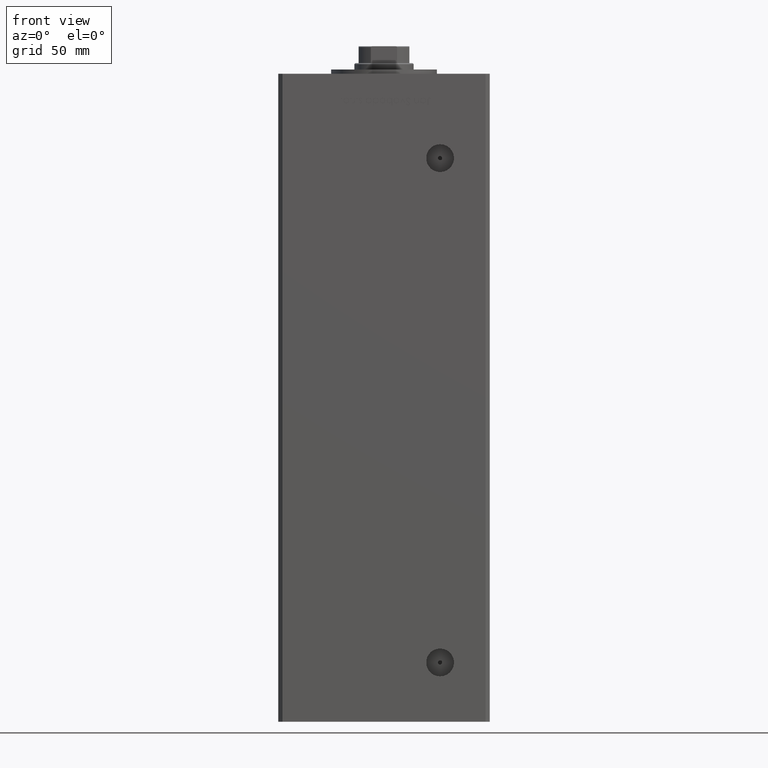
[diagram: clean part render]
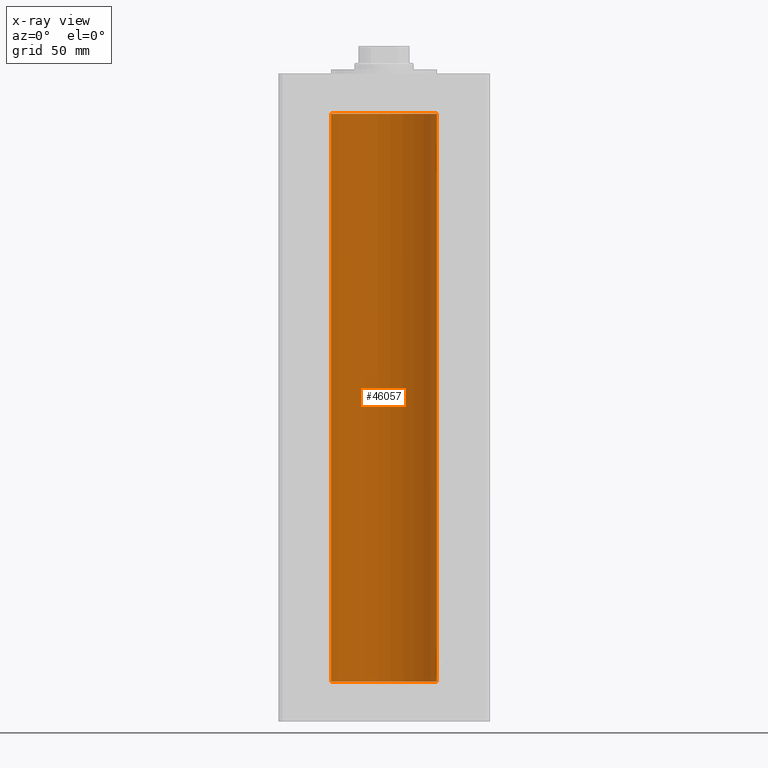
[diagram: x-ray — body ghosted, one internal face saturated and labeled with its STEP entity id]
A machine part, front view, then the same camera in x-ray: the body is ghosted and one INTERNAL B-rep face — a face not visible from any outside direction — is saturated and labeled: STEP entity #46057.
In plain terms, the highlighted cylindrical surface (partial cylindrical patch) has radius 25 mm, axis along (-0, -0, -1).
Its self-contained STEP definition (entity closure, byte-faithful):
#94 = ORIENTED_EDGE ( 'NONE', *, *, #13609, .T. ) ;
#2873 = DIRECTION ( 'NONE',  ( -0.000000000000000000, 0.000000000000000000, 1.000000000000000000 ) ) ;
#4082 = VECTOR ( 'NONE', #20798, 1000.000000000000000 ) ;
#4270 = AXIS2_PLACEMENT_3D ( 'NONE', #51103, #19189, #11033 ) ;
#4915 = VERTEX_POINT ( 'NONE', #48089 ) ;
#5518 = AXIS2_PLACEMENT_3D ( 'NONE', #51368, #15245, #50843 ) ;
#6185 = VERTEX_POINT ( 'NONE', #7990 ) ;
#6874 = VERTEX_POINT ( 'NONE', #41022 ) ;
#7990 = CARTESIAN_POINT ( 'NONE',  ( 25.00000000000000000, 3.061616997868383043E-15, 0.000000000000000000 ) ) ;
#11033 = DIRECTION ( 'NONE',  ( -1.000000000000000000, 0.000000000000000000, 0.000000000000000000 ) ) ;
#13409 = CARTESIAN_POINT ( 'NONE',  ( 25.00000000000000000, 3.061616997868383043E-15, 268.5000000000000000 ) ) ;
#13609 = EDGE_CURVE ( 'NONE', #6874, #4915, #27417, .T. ) ;
#15021 = DIRECTION ( 'NONE',  ( 1.000000000000000000, 0.000000000000000000, 0.000000000000000000 ) ) ;
#15155 = EDGE_CURVE ( 'NONE', #6185, #23670, #45967, .T. ) ;
#15244 = FACE_OUTER_BOUND ( 'NONE', #24740, .T. ) ;
#15245 = DIRECTION ( 'NONE',  ( -0.000000000000000000, 0.000000000000000000, 1.000000000000000000 ) ) ;
#16490 = AXIS2_PLACEMENT_3D ( 'NONE', #26375, #2873, #15021 ) ;
#18341 = ORIENTED_EDGE ( 'NONE', *, *, #15155, .F. ) ;
#18774 = ORIENTED_EDGE ( 'NONE', *, *, #21409, .T. ) ;
#19189 = DIRECTION ( 'NONE',  ( -0.000000000000000000, -0.000000000000000000, -1.000000000000000000 ) ) ;
#20798 = DIRECTION ( 'NONE',  ( -0.000000000000000000, -0.000000000000000000, -1.000000000000000000 ) ) ;
#21409 = EDGE_CURVE ( 'NONE', #4915, #23670, #29577, .T. ) ;
#23670 = VERTEX_POINT ( 'NONE', #35060 ) ;
#24740 = EDGE_LOOP ( 'NONE', ( #39172, #94, #18774, #18341 ) ) ;
#25597 = CARTESIAN_POINT ( 'NONE',  ( -25.00000000000000000, 0.000000000000000000, 268.5000000000000000 ) ) ;
#26068 = CYLINDRICAL_SURFACE ( 'NONE', #4270, 25.00000000000000000 ) ;
#26375 = CARTESIAN_POINT ( 'NONE',  ( 0.000000000000000000, 0.000000000000000000, 0.000000000000000000 ) ) ;
#27417 = CIRCLE ( 'NONE', #5518, 25.00000000000000000 ) ;
#29577 = LINE ( 'NONE', #25597, #47723 ) ;
#35060 = CARTESIAN_POINT ( 'NONE',  ( -25.00000000000000000, 0.000000000000000000, 0.000000000000000000 ) ) ;
#36365 = EDGE_CURVE ( 'NONE', #6874, #6185, #40603, .T. ) ;
#39172 = ORIENTED_EDGE ( 'NONE', *, *, #36365, .F. ) ;
#40603 = LINE ( 'NONE', #13409, #4082 ) ;
#41022 = CARTESIAN_POINT ( 'NONE',  ( 25.00000000000000000, 3.061616997868383043E-15, 268.5000000000000000 ) ) ;
#45967 = CIRCLE ( 'NONE', #16490, 25.00000000000000000 ) ;
#46057 = ADVANCED_FACE ( 'NONE', ( #15244 ), #26068, .F. ) ;
#47723 = VECTOR ( 'NONE', #49346, 1000.000000000000000 ) ;
#48089 = CARTESIAN_POINT ( 'NONE',  ( -25.00000000000000000, 0.000000000000000000, 268.5000000000000000 ) ) ;
#49346 = DIRECTION ( 'NONE',  ( -0.000000000000000000, -0.000000000000000000, -1.000000000000000000 ) ) ;
#50843 = DIRECTION ( 'NONE',  ( 1.000000000000000000, 0.000000000000000000, 0.000000000000000000 ) ) ;
#51103 = CARTESIAN_POINT ( 'NONE',  ( 0.000000000000000000, 0.000000000000000000, 268.5000000000000000 ) ) ;
#51368 = CARTESIAN_POINT ( 'NONE',  ( 0.000000000000000000, 0.000000000000000000, 268.5000000000000000 ) ) ;